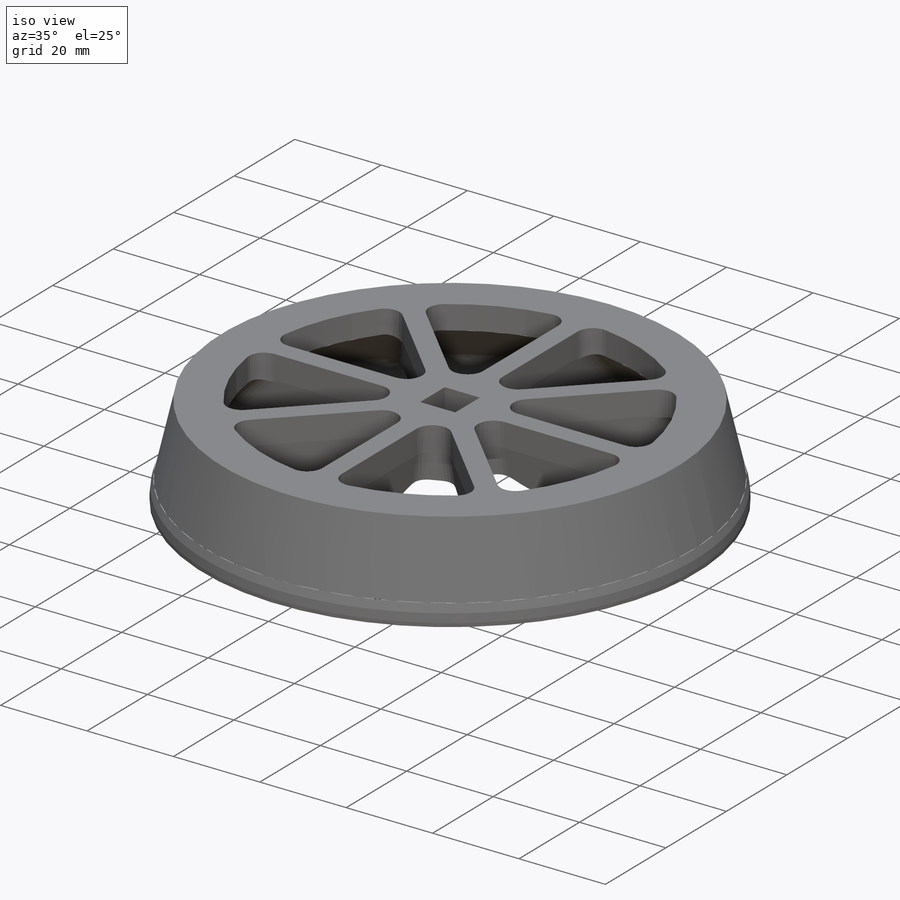
[diagram: iso view]
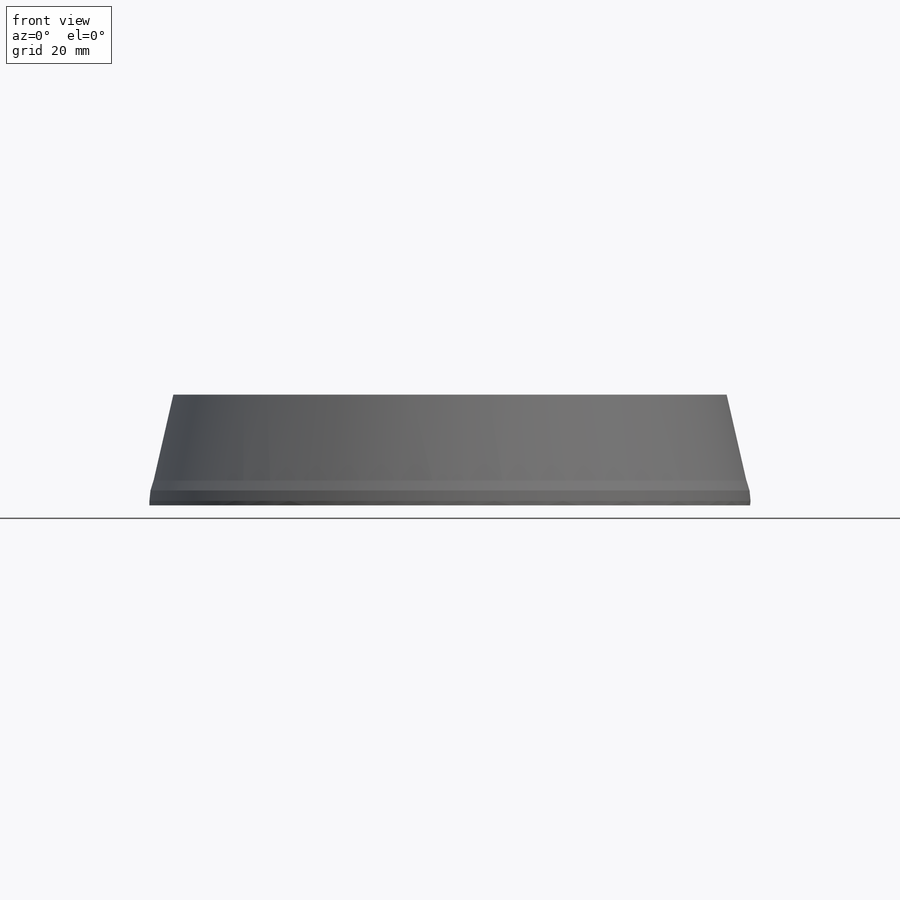
[diagram: front view]
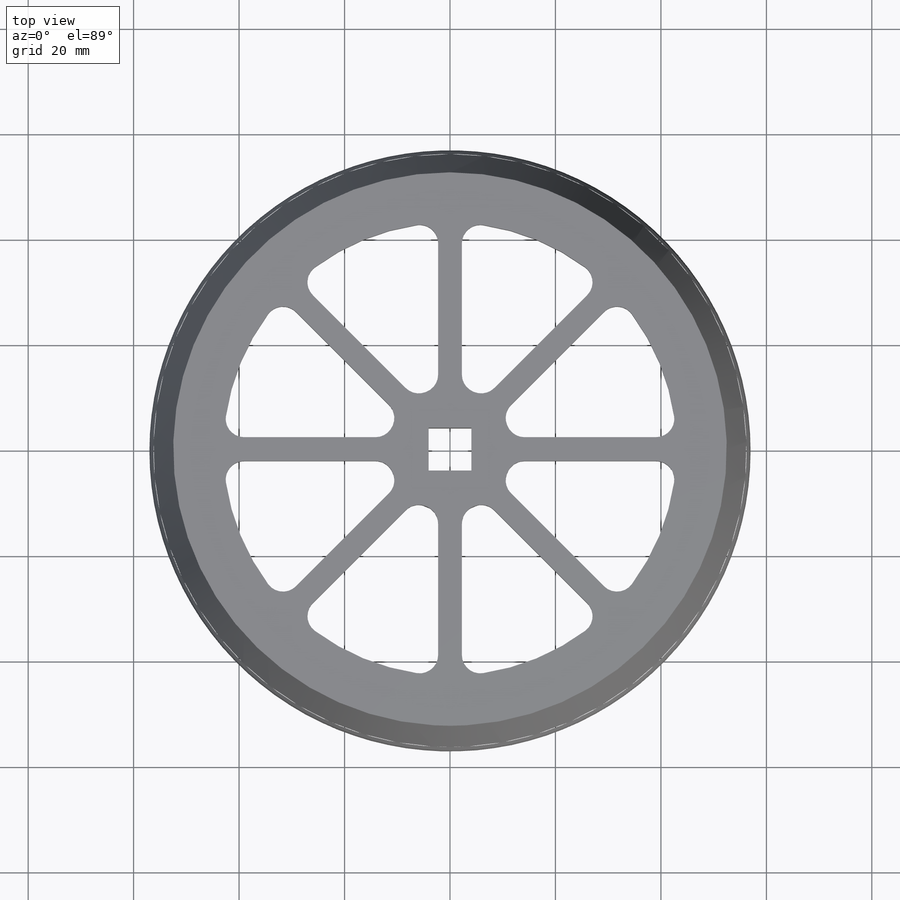
[diagram: top view]
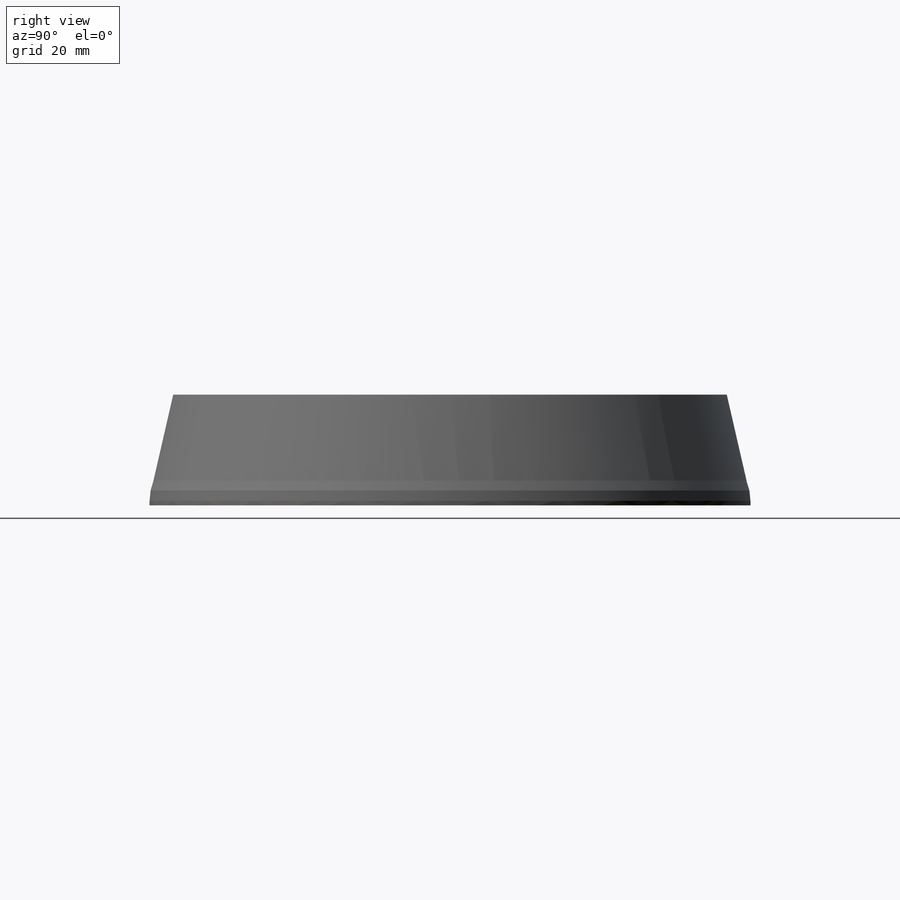
[diagram: right view]
SOLIDWORKS PART (.sldprt)
format: sldprt  version: not decoded by parser v0  size: 1,271,296 bytes
history: native  units: mm
features: sketch x20, extrude x9, cut_extrude x7, fillet x4, revolve x2, material x1, shell x1, pattern_circular x1, chamfer x1, cut_revolve x1 (+13 scaffold rows collapsed)
feature tree (60):
  scaffold x13  (default folders/planes/origin — collapsed)
  material  "Material <not specified>"
  sketch  "Sketch1"  dims[D1=114.0mm]
  sketch  "Sketch2"  dims[c1.D5=5.0mm c1.D6=5.0mm c2.D5=10.0mm c2.D1=20.0mm c2.D2=20.0mm c3.D2=45.0deg c3.D3=57.0mm c3.D4=~24.172661mm c4.D2=5.0mm c4.D4=20.0mm c5.D4=45.0deg]
  revolve  "Revolve1"  Angle=360deg
  shell  "Shell2"  Thickness=2.5mm
  sketch  "Sketch3"  dims[c1.D1=17.6543mm c1.D2=~16.111691mm c2.D1=8.125mm c2.D2=8.125mm]
  cut_extrude  "Cut-Extrude1"  [1 undecoded]
  sketch  "Sketch4"  dims[D1=23.5mm]
  extrude  "Boss-Extrude2"  Depth=3mm
  sketch  "Sketch10"  dims[c1.D1=~24.142136mm c1.D2=~4.768063mm c2.D1=5.0mm c2.D2=~10.372629mm c3.D1=7.5mm c3.D2=~0.08571mm c4.D1=2.5mm c4.D2=10.0mm c4.D3=1.25mm c5.D3=~80.537678deg c5.D4=2.5mm c6.D3=2.5mm c6.D4=5.0mm c7.D4=~82.874984deg c7.D5=5.0mm c8.D5=~82.874984deg c9.D5=84.0mm c10.D5=~82.874984deg c11.D5=5.0mm]
  extrude  "Boss-Extrude5"  [1 undecoded]
  pattern_circular  "CirPattern4"  Count=8 Angle=360deg
  sketch  "Sketch11"
  cut_extrude  "Cut-Extrude7"  [1 undecoded]
  sketch  "Sketch12"  dims[D1=8.125mm D2=8.125mm]
  cut_extrude  "Cut-Extrude8"  [1 undecoded]
  chamfer  "Chamfer1"  Distance=4mm Angle=45deg
  sketch  "Sketch14"  dims[D1=~0.451425mm]
  revolve  "Revolve2"  Angle=360deg
  sketch  "Sketch16"  dims[c1.D1=~3.44354mm c1.D2=~91.722043mm c2.D1=2.5mm c2.D2=5.0mm c3.D1=2.5mm c3.D3=2.0mm]
  extrude  "Boss-Extrude7"  [1 undecoded]
  sketch  "Sketch17"  dims[D1=0.0mm]
  cut_extrude  "Cut-Extrude9"  [1 undecoded]
  sketch  "Sketch18"  dims[D1=0.0mm D2=0.0mm D3=10.0mm]
  cut_extrude  "Cut-Extrude10"  Depth=1.5mm
  fillet  "Fillet1"  Radius=20mm
  sketch  "Sketch19"  dims[D1=0.0mm D2=0.0mm]
  extrude  "Boss-Extrude8"  [1 undecoded]
  sketch  "Sketch20"  dims[D1=0.0mm D2=0.0mm]
  extrude  "Boss-Extrude9"  Depth=2mm
  fillet  "Fillet2"  Radius=10mm
  sketch  "Sketch21"
  cut_extrude  "Cut-Extrude11"  [1 undecoded]
  fillet  "Fillet3"  Radius=3.5mm
  fillet  "Fillet4"  Radius=3.5mm
  sketch  "Sketch22"  dims[D1=0.0mm D2=0.0mm D3=0.0mm D4=0.0mm D5=0.0mm D6=0.0mm D7=0.0mm D8=0.0mm D9=0.0mm D10=0.0mm]
  extrude  "Boss-Extrude10"  Depth=2.5mm
  sketch  "Sketch23"
  cut_revolve  "Cut-Revolve1"  Angle=360deg
  sketch  "Sketch13"
  extrude  "Boss-Extrude6"  Depth=3mm
  sketch  "Sketch6"  dims[D1=1.5mm D2=1.5mm D3=~1.173507mm]
  extrude  "Boss-Extrude3"  [1 undecoded]
  sketch  "Sketch7"  dims[c1.D1=~2.44337mm c1.D2=~2.518214mm c2.D1=1.5mm c2.D2=1.5mm c2.D3=~0.025489mm]
  extrude  "Boss-Extrude4"  [1 undecoded]
  sketch  "Sketch8"  dims[D1=8.125mm D2=8.125mm]
  cut_extrude  "Cut-Extrude6"  Depth=5mm
decode coverage: 32 of 46 modeling features carry decoded parameters
note: ~ marks probable driven/reference dimensions
note: 10 parameter values undecoded
summary: no parameter record found for 10 features
note: suppression state not decoded; provenance and decode notes live in map.json
